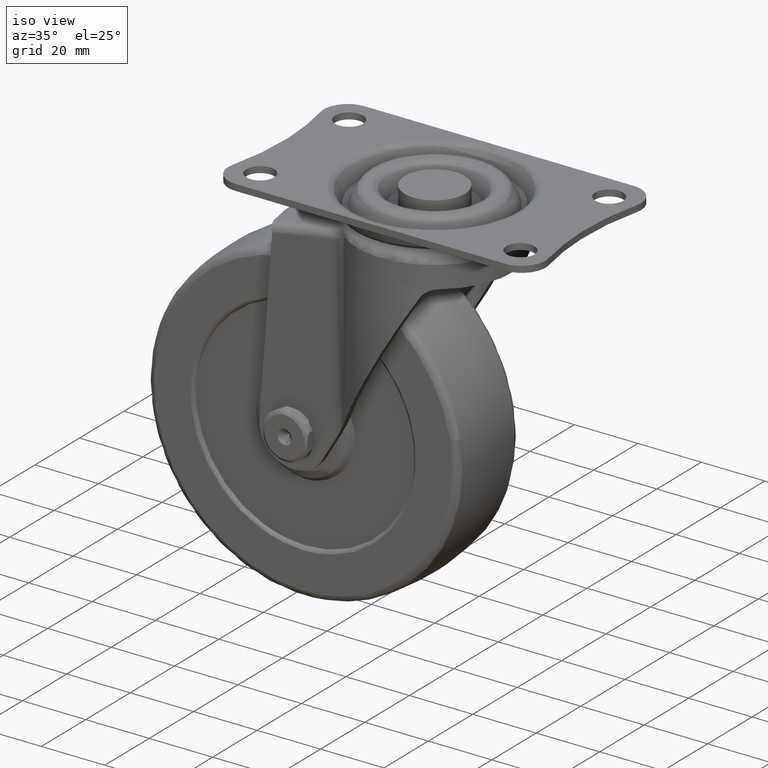
[diagram: clean part render]
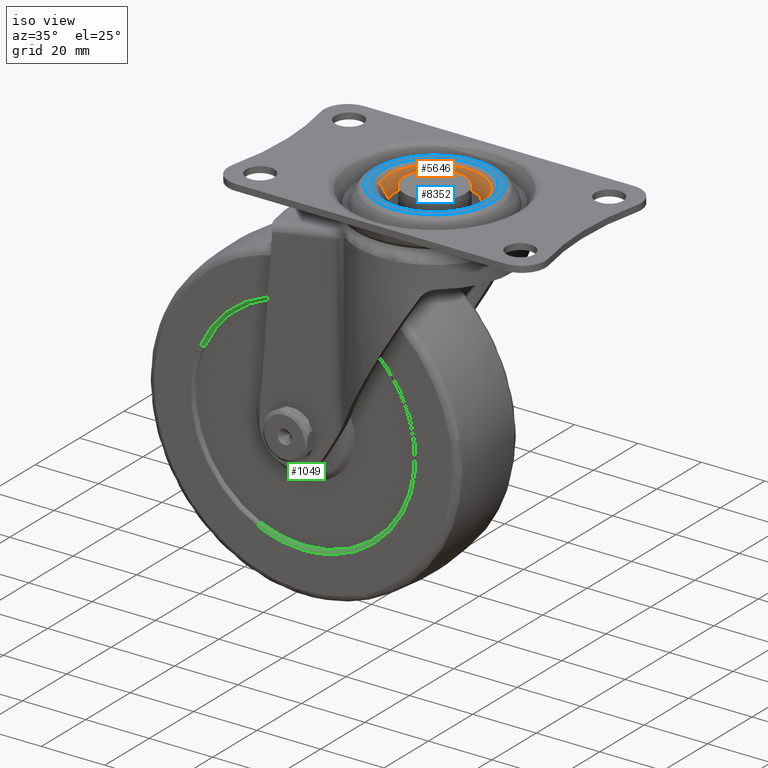
[diagram: same view with three faces highlighted in distinct colors, each labeled with its STEP entity id]
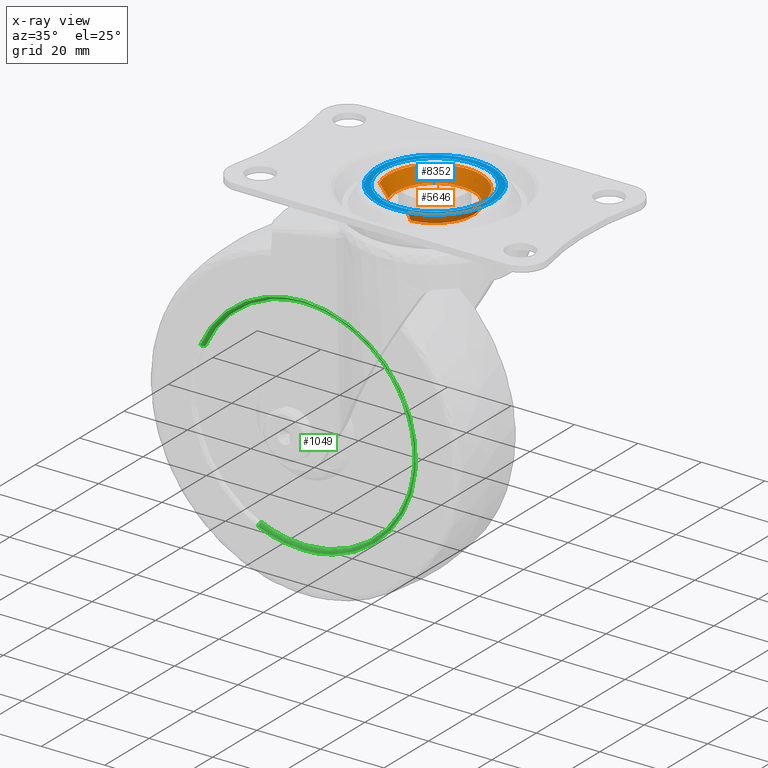
[diagram: x-ray of the same camera — body ghosted, the three highlighted faces saturated]
A machine part, iso view with three faces highlighted in distinct colors.
The next image is the same camera in x-ray (body ghosted, the three faces saturated) — at least one of them is partly hidden behind the body in this view.
Their STEP definitions:

[orange] entity #5646 — the highlighted face is a freeform B-spline surface patch.
#5445=CARTESIAN_POINT('',(0.961123922996726,-12.212237338238280,-3.200000999942240));
#5446=VERTEX_POINT('',#5445);
#5447=CARTESIAN_POINT('',(-11.390837720412531,-4.506801586166319,-3.200004922929527));
#5448=VERTEX_POINT('',#5447);
#5464=CARTESIAN_POINT('',(-13.645641065980440,-5.398920220118912,1.000000000005042));
#5465=VERTEX_POINT('',#5464);
#5466=CARTESIAN_POINT('',(-11.390837720412531,-4.506801586166319,-3.200004922929527));
#5467=CARTESIAN_POINT('',(-13.645641065980440,-5.398920220118912,1.000000000005042));
#5468=QUASI_UNIFORM_CURVE('',1,(#5466,#5467),.UNSPECIFIED.,.F.,.U.);
#5469=EDGE_CURVE('',#5448,#5465,#5468,.T.);
#5471=CARTESIAN_POINT('',(1.151377164130931,-14.629633975962040,1.000000000000579));
#5472=VERTEX_POINT('',#5471);
#5488=CARTESIAN_POINT('',(0.961123922996726,-12.212237338238280,-3.200000999942240));
#5489=CARTESIAN_POINT('',(1.151377164130931,-14.629633975962040,1.000000000000579));
#5490=QUASI_UNIFORM_CURVE('',1,(#5488,#5489),.UNSPECIFIED.,.F.,.U.);
#5491=EDGE_CURVE('',#5446,#5472,#5490,.T.);
#5496=CARTESIAN_POINT('',(0.956367591624491,-12.151802422223110,-3.305001025112003));
#5497=CARTESIAN_POINT('',(13.108170013847582,-11.195434830598616,-3.305001025112002));
#5498=CARTESIAN_POINT('',(12.151802422223090,0.956367591624477,-3.305001025112003));
#5499=CARTESIAN_POINT('',(11.195434830598602,13.108170013847568,-3.305001025112002));
#5500=CARTESIAN_POINT('',(-0.956367591624491,12.151802422223080,-3.305001025112003));
#5501=CARTESIAN_POINT('',(-13.108170013847582,11.195434830598588,-3.305001025112002));
#5502=CARTESIAN_POINT('',(-12.151802422223090,-0.956367591624505,-3.305001025112003));
#5503=CARTESIAN_POINT('',(-12.008135825992984,-2.781824777073583,-3.305001025112003));
#5504=CARTESIAN_POINT('',(-11.334469094097001,-4.484501246963442,-3.305001025112002));
#5505=CARTESIAN_POINT('',(1.156252403648143,-14.691579767447431,1.107625030218009));
#5506=CARTESIAN_POINT('',(15.847832171095549,-13.535327363799283,1.107625030218009));
#5507=CARTESIAN_POINT('',(14.691579767447410,1.156252403648129,1.107625030218009));
#5508=CARTESIAN_POINT('',(13.535327363799270,15.847832171095536,1.107625030218009));
#5509=CARTESIAN_POINT('',(-1.156252403648143,14.691579767447401,1.107625030218009));
#5510=CARTESIAN_POINT('',(-15.847832171095549,13.535327363799254,1.107625030218009));
#5511=CARTESIAN_POINT('',(-14.691579767447410,-1.156252403648157,1.107625030218009));
#5512=CARTESIAN_POINT('',(-14.517886253917908,-3.363237747899569,1.107625030218009));
#5513=CARTESIAN_POINT('',(-13.703420367752290,-5.421780695388202,1.107625030218009));
#5521=(BOUNDED_SURFACE()B_SPLINE_SURFACE(2,1,((#5496,#5505),(#5497,#5506),(#5498,#5507),(#5499,#5508),(#5500,#5509),(#5501,#5510),(#5502,#5511),(#5503,#5512),(#5504,#5513)),.UNSPECIFIED.,.F.,.F.,.U.)B_SPLINE_SURFACE_WITH_KNOTS((3,2,2,2,3),(2,2),(0.0,24.417076066176371,48.834152132352742,73.251228198529105,78.134643411764387),(0.0,5.095261681755877),.UNSPECIFIED.)GEOMETRIC_REPRESENTATION_ITEM()RATIONAL_B_SPLINE_SURFACE(((1.0,1.0),(0.707106781186548,0.707106781186548),(1.0,1.0),(0.707106781186548,0.707106781186548),(1.0,1.0),(0.707106781186548,0.707106781186548),(1.0,1.0),(0.941421356237310,0.941421356237310),(0.906274169979695,0.906274169979695)))REPRESENTATION_ITEM('')SURFACE());
#5522=CARTESIAN_POINT('',(-12.250000000000000,-1.421085E-014,-3.200001000000045));
#5523=VERTEX_POINT('',#5522);
#5524=CARTESIAN_POINT('',(-11.390837720412529,-4.506801586166319,-3.200004922929527));
#5525=CARTESIAN_POINT('',(-12.249998946972870,-2.335294354758209,-3.200002961464787));
#5526=CARTESIAN_POINT('',(-12.250000000000000,-1.421085E-014,-3.200001000000045));
#5534=(BOUNDED_CURVE()B_SPLINE_CURVE(2,(#5524,#5525,#5526),.UNSPECIFIED.,.F.,.U.)B_SPLINE_CURVE_WITH_KNOTS((3,3),(0.937532573830713,1.0),.UNSPECIFIED.)CURVE()GEOMETRIC_REPRESENTATION_ITEM()RATIONAL_B_SPLINE_CURVE((0.890203215506283,0.926814857913144,1.0))REPRESENTATION_ITEM(''));
#5535=EDGE_CURVE('',#5448,#5523,#5534,.T.);
#5536=ORIENTED_EDGE('',*,*,#5535,.T.);
#5537=CARTESIAN_POINT('',(12.250000000000000,-1.421085E-014,-3.200001000000045));
#5538=VERTEX_POINT('',#5537);
#5539=CARTESIAN_POINT('',(-12.250000000000000,-1.421085E-014,-3.200001000000045));
#5540=CARTESIAN_POINT('',(-12.249999999999996,12.249999999999984,-3.200001000000045));
#5541=CARTESIAN_POINT('',(0.0,12.249999999999989,-3.200001000000045));
#5542=CARTESIAN_POINT('',(12.249999999999996,12.249999999999984,-3.200001000000045));
#5543=CARTESIAN_POINT('',(12.250000000000000,-1.421085E-014,-3.200001000000045));
#5551=(BOUNDED_CURVE()B_SPLINE_CURVE(2,(#5539,#5540,#5541,#5542,#5543),.UNSPECIFIED.,.F.,.U.)B_SPLINE_CURVE_WITH_KNOTS((3,2,3),(0.0,0.250000000000000,0.500000000000000),.UNSPECIFIED.)CURVE()GEOMETRIC_REPRESENTATION_ITEM()RATIONAL_B_SPLINE_CURVE((1.0,0.707106781186547,1.0,0.707106781186547,1.0))REPRESENTATION_ITEM(''));
#5552=EDGE_CURVE('',#5523,#5538,#5551,.T.);
#5553=ORIENTED_EDGE('',*,*,#5552,.T.);
#5554=CARTESIAN_POINT('',(12.250000000000000,-1.421085E-014,-3.200001000000045));
#5555=CARTESIAN_POINT('',(12.249999999999998,-11.323783522202845,-3.200001000000046));
#5556=CARTESIAN_POINT('',(0.961123922996726,-12.212237338238289,-3.200000999942240));
#5564=(BOUNDED_CURVE()B_SPLINE_CURVE(2,(#5554,#5555,#5556),.UNSPECIFIED.,.F.,.U.)B_SPLINE_CURVE_WITH_KNOTS((3,3),(0.500000000000000,0.736331300623558),.UNSPECIFIED.)CURVE()GEOMETRIC_REPRESENTATION_ITEM()RATIONAL_B_SPLINE_CURVE((1.0,0.723120658615986,0.969723356152597))REPRESENTATION_ITEM(''));
#5565=EDGE_CURVE('',#5538,#5446,#5564,.T.);
#5566=ORIENTED_EDGE('',*,*,#5565,.T.);
#5567=ORIENTED_EDGE('',*,*,#5491,.T.);
#5568=CARTESIAN_POINT('',(14.674871707946719,-1.421085E-014,1.0));
#5569=VERTEX_POINT('',#5568);
#5570=CARTESIAN_POINT('',(14.674871707946719,-1.421085E-014,1.0));
#5571=CARTESIAN_POINT('',(14.674871707946718,-13.565311873123937,1.0));
#5572=CARTESIAN_POINT('',(1.151377164130931,-14.629633975962049,1.000000000000579));
#5580=(BOUNDED_CURVE()B_SPLINE_CURVE(2,(#5570,#5571,#5572),.UNSPECIFIED.,.F.,.U.)B_SPLINE_CURVE_WITH_KNOTS((3,3),(0.500000000000000,0.736331300632691),.UNSPECIFIED.)CURVE()GEOMETRIC_REPRESENTATION_ITEM()RATIONAL_B_SPLINE_CURVE((1.0,0.723120658605286,0.969723356171656))REPRESENTATION_ITEM(''));
#5581=EDGE_CURVE('',#5569,#5472,#5580,.T.);
#5582=ORIENTED_EDGE('',*,*,#5581,.F.);
#5583=CARTESIAN_POINT('',(7.230710525627229,12.769834964288400,1.000000004478253));
#5584=VERTEX_POINT('',#5583);
#5585=CARTESIAN_POINT('',(7.230710525627229,12.769834964288403,1.000000004478253));
#5586=CARTESIAN_POINT('',(14.674871707946716,8.554700249920035,1.0));
#5587=CARTESIAN_POINT('',(14.674871707946719,-1.421085E-014,1.0));
#5595=(BOUNDED_CURVE()B_SPLINE_CURVE(2,(#5585,#5586,#5587),.UNSPECIFIED.,.F.,.U.)B_SPLINE_CURVE_WITH_KNOTS((3,3),(0.333983638487781,0.500000000000000),.UNSPECIFIED.)CURVE()GEOMETRIC_REPRESENTATION_ITEM()RATIONAL_B_SPLINE_CURVE((0.869321279798486,0.805499734003954,1.0))REPRESENTATION_ITEM(''));
#5596=EDGE_CURVE('',#5584,#5569,#5595,.T.);
#5597=ORIENTED_EDGE('',*,*,#5596,.F.);
#5598=CARTESIAN_POINT('',(-12.769834964288419,7.230710525627215,1.000000004478253));
#5599=VERTEX_POINT('',#5598);
#5600=CARTESIAN_POINT('',(-12.769834964288414,7.230710525627215,1.000000004478253));
#5601=CARTESIAN_POINT('',(-8.554700249920050,14.674871707946703,1.0));
#5602=CARTESIAN_POINT('',(0.0,14.674871707946711,1.0));
#5603=CARTESIAN_POINT('',(3.866310198917092,14.674871707946707,1.0));
#5604=CARTESIAN_POINT('',(7.230710525627230,12.769834964288407,1.000000004478253));
#5612=(BOUNDED_CURVE()B_SPLINE_CURVE(2,(#5600,#5601,#5602,#5603,#5604),.UNSPECIFIED.,.F.,.U.)B_SPLINE_CURVE_WITH_KNOTS((3,2,3),(0.083983638487781,0.250000000000000,0.333983638487782),.UNSPECIFIED.)CURVE()GEOMETRIC_REPRESENTATION_ITEM()RATIONAL_B_SPLINE_CURVE((0.869321279798486,0.805499734003954,1.0,0.901607047182593,0.869321279798486))REPRESENTATION_ITEM(''));
#5613=EDGE_CURVE('',#5599,#5584,#5612,.T.);
#5614=ORIENTED_EDGE('',*,*,#5613,.F.);
#5615=CARTESIAN_POINT('',(-14.674871707946719,-1.421085E-014,1.0));
#5616=VERTEX_POINT('',#5615);
#5617=CARTESIAN_POINT('',(-14.674871707946719,-1.421085E-014,1.0));
#5618=CARTESIAN_POINT('',(-14.674871707946716,3.866310198917070,1.0));
#5619=CARTESIAN_POINT('',(-12.769834964288414,7.230710525627215,1.000000004478253));
#5627=(BOUNDED_CURVE()B_SPLINE_CURVE(2,(#5617,#5618,#5619),.UNSPECIFIED.,.F.,.U.)B_SPLINE_CURVE_WITH_KNOTS((3,3),(0.0,0.083983638487781),.UNSPECIFIED.)CURVE()GEOMETRIC_REPRESENTATION_ITEM()RATIONAL_B_SPLINE_CURVE((1.0,0.901607047182593,0.869321279798486))REPRESENTATION_ITEM(''));
#5628=EDGE_CURVE('',#5616,#5599,#5627,.T.);
#5629=ORIENTED_EDGE('',*,*,#5628,.F.);
#5630=CARTESIAN_POINT('',(-13.645641065980438,-5.398920220118911,1.000000000005042));
#5631=CARTESIAN_POINT('',(-14.674871707946719,-2.797564515326600,1.0));
#5632=CARTESIAN_POINT('',(-14.674871707946719,-1.421085E-014,1.0));
#5640=(BOUNDED_CURVE()B_SPLINE_CURVE(2,(#5630,#5631,#5632),.UNSPECIFIED.,.F.,.U.)B_SPLINE_CURVE_WITH_KNOTS((3,3),(0.937532549938708,1.0),.UNSPECIFIED.)CURVE()GEOMETRIC_REPRESENTATION_ITEM()RATIONAL_B_SPLINE_CURVE((0.890203187500475,0.926814829921918,1.0))REPRESENTATION_ITEM(''));
#5641=EDGE_CURVE('',#5465,#5616,#5640,.T.);
#5642=ORIENTED_EDGE('',*,*,#5641,.F.);
#5643=ORIENTED_EDGE('',*,*,#5469,.F.);
#5644=EDGE_LOOP('',(#5536,#5553,#5566,#5567,#5582,#5597,#5614,#5629,#5642,#5643));
#5645=FACE_OUTER_BOUND('',#5644,.T.);
#5646=ADVANCED_FACE('',(#5645),#5521,.F.);

[blue] entity #8352 — the highlighted face is a freeform B-spline surface patch.
#6671=CARTESIAN_POINT('',(-14.277037436021990,8.084139313534365,2.0));
#6672=VERTEX_POINT('',#6671);
#6686=CARTESIAN_POINT('',(-16.406922515515600,-1.421085E-014,2.0));
#6687=VERTEX_POINT('',#6686);
#6688=CARTESIAN_POINT('',(-16.406922515515600,-1.421085E-014,2.0));
#6689=CARTESIAN_POINT('',(-16.406922515515603,4.322644389379765,2.000000000000000));
#6690=CARTESIAN_POINT('',(-14.277037436021983,8.084139313534365,2.0));
#6698=(BOUNDED_CURVE()B_SPLINE_CURVE(2,(#6688,#6689,#6690),.UNSPECIFIED.,.F.,.U.)B_SPLINE_CURVE_WITH_KNOTS((3,3),(0.0,0.083983638486162),.UNSPECIFIED.)CURVE()GEOMETRIC_REPRESENTATION_ITEM()RATIONAL_B_SPLINE_CURVE((1.0,0.901607047184490,0.869321279799731))REPRESENTATION_ITEM(''));
#6699=EDGE_CURVE('',#6687,#6672,#6698,.T.);
#6701=CARTESIAN_POINT('',(16.406922515515600,-1.421085E-014,2.0));
#6702=VERTEX_POINT('',#6701);
#6703=CARTESIAN_POINT('',(16.406922515515600,-1.421085E-014,2.0));
#6704=CARTESIAN_POINT('',(16.406922515515600,-16.406922515515614,2.000000000000000));
#6705=CARTESIAN_POINT('',(0.0,-16.406922515515610,2.0));
#6706=CARTESIAN_POINT('',(-16.406922515515600,-16.406922515515614,2.000000000000000));
#6707=CARTESIAN_POINT('',(-16.406922515515600,-1.421085E-014,2.0));
#6715=(BOUNDED_CURVE()B_SPLINE_CURVE(2,(#6703,#6704,#6705,#6706,#6707),.UNSPECIFIED.,.F.,.U.)B_SPLINE_CURVE_WITH_KNOTS((3,2,3),(0.500000000000000,0.750000000000000,1.0),.UNSPECIFIED.)CURVE()GEOMETRIC_REPRESENTATION_ITEM()RATIONAL_B_SPLINE_CURVE((1.0,0.707106781186548,1.0,0.707106781186548,1.0))REPRESENTATION_ITEM(''));
#6716=EDGE_CURVE('',#6702,#6687,#6715,.T.);
#6718=CARTESIAN_POINT('',(8.084139313534376,14.277037436021971,2.0));
#6719=VERTEX_POINT('',#6718);
#6720=CARTESIAN_POINT('',(8.084139313534376,14.277037436021972,2.0));
#6721=CARTESIAN_POINT('',(16.406922515515600,9.564397354805751,2.000000000000000));
#6722=CARTESIAN_POINT('',(16.406922515515600,-1.421085E-014,2.0));
#6730=(BOUNDED_CURVE()B_SPLINE_CURVE(2,(#6720,#6721,#6722),.UNSPECIFIED.,.F.,.U.)B_SPLINE_CURVE_WITH_KNOTS((3,3),(0.333983638486162,0.500000000000000),.UNSPECIFIED.)CURVE()GEOMETRIC_REPRESENTATION_ITEM()RATIONAL_B_SPLINE_CURVE((0.869321279799731,0.805499734002057,1.0))REPRESENTATION_ITEM(''));
#6731=EDGE_CURVE('',#6719,#6702,#6730,.T.);
#6768=CARTESIAN_POINT('',(-14.277037436021992,8.084139313534365,2.000000000000000));
#6769=CARTESIAN_POINT('',(-9.564397354805763,16.406922515515586,2.000000000000000));
#6770=CARTESIAN_POINT('',(0.0,16.406922515515589,2.0));
#6771=CARTESIAN_POINT('',(4.322644389379791,16.406922515515582,2.0));
#6772=CARTESIAN_POINT('',(8.084139313534376,14.277037436021976,2.000000000000000));
#6780=(BOUNDED_CURVE()B_SPLINE_CURVE(2,(#6768,#6769,#6770,#6771,#6772),.UNSPECIFIED.,.F.,.U.)B_SPLINE_CURVE_WITH_KNOTS((3,2,3),(0.083983638486162,0.250000000000000,0.333983638486163),.UNSPECIFIED.)CURVE()GEOMETRIC_REPRESENTATION_ITEM()RATIONAL_B_SPLINE_CURVE((0.869321279799731,0.805499734002057,1.0,0.901607047184490,0.869321279799731))REPRESENTATION_ITEM(''));
#6781=EDGE_CURVE('',#6672,#6719,#6780,.T.);
#6816=CARTESIAN_POINT('',(8.316551361323885,-16.349417890404499,2.0));
#6817=VERTEX_POINT('',#6816);
#6818=CARTESIAN_POINT('',(-18.343077484484400,-1.421085E-014,2.0));
#6819=VERTEX_POINT('',#6818);
#6820=CARTESIAN_POINT('',(8.316551361323885,-16.349417890404492,1.999999999999999));
#6821=CARTESIAN_POINT('',(4.397237625745127,-18.343077484484418,2.000000000000000));
#6822=CARTESIAN_POINT('',(0.0,-18.343077484484411,2.0));
#6823=CARTESIAN_POINT('',(-18.343077484484404,-18.343077484484418,2.000000000000000));
#6824=CARTESIAN_POINT('',(-18.343077484484400,-1.421085E-014,2.0));
#6832=(BOUNDED_CURVE()B_SPLINE_CURVE(2,(#6820,#6821,#6822,#6823,#6824),.UNSPECIFIED.,.F.,.U.)B_SPLINE_CURVE_WITH_KNOTS((3,2,3),(0.672901120401889,0.750000000000000,1.0),.UNSPECIFIED.)CURVE()GEOMETRIC_REPRESENTATION_ITEM()RATIONAL_B_SPLINE_CURVE((0.875058944772247,0.909673043950394,1.0,0.707106781186548,1.0))REPRESENTATION_ITEM(''));
#6833=EDGE_CURVE('',#6817,#6819,#6832,.T.);
#6835=CARTESIAN_POINT('',(15.847014192408439,9.237999416908927,2.0));
#6836=VERTEX_POINT('',#6835);
#6837=CARTESIAN_POINT('',(-18.343077484484400,-1.421085E-014,2.0));
#6838=CARTESIAN_POINT('',(-18.343077484484404,18.343077484484386,2.000000000000000));
#6839=CARTESIAN_POINT('',(0.0,18.343077484484390,2.0));
#6840=CARTESIAN_POINT('',(10.539218977415647,18.343077484484393,2.000000000000000));
#6841=CARTESIAN_POINT('',(15.847014192408437,9.237999416908926,1.999999999999999));
#6849=(BOUNDED_CURVE()B_SPLINE_CURVE(2,(#6837,#6838,#6839,#6840,#6841),.UNSPECIFIED.,.F.,.U.)B_SPLINE_CURVE_WITH_KNOTS((3,2,3),(0.0,0.250000000000000,0.414086837565918),.UNSPECIFIED.)CURVE()GEOMETRIC_REPRESENTATION_ITEM()RATIONAL_B_SPLINE_CURVE((1.0,0.707106781186548,1.0,0.807760311921592,0.867872643614740))REPRESENTATION_ITEM(''));
#6850=EDGE_CURVE('',#6819,#6836,#6849,.T.);
#6908=CARTESIAN_POINT('',(18.343077484484400,-1.421085E-014,2.0));
#6909=VERTEX_POINT('',#6908);
#6910=CARTESIAN_POINT('',(18.343077484484400,-1.421085E-014,2.0));
#6911=CARTESIAN_POINT('',(18.343077484484407,-11.249167827054080,2.000000000000000));
#6912=CARTESIAN_POINT('',(8.316551361323885,-16.349417890404492,1.999999999999999));
#6920=(BOUNDED_CURVE()B_SPLINE_CURVE(2,(#6910,#6911,#6912),.UNSPECIFIED.,.F.,.U.)B_SPLINE_CURVE_WITH_KNOTS((3,3),(0.500000000000000,0.672901120401889),.UNSPECIFIED.)CURVE()GEOMETRIC_REPRESENTATION_ITEM()RATIONAL_B_SPLINE_CURVE((1.0,0.797433737236153,0.875058944772247))REPRESENTATION_ITEM(''));
#6921=EDGE_CURVE('',#6909,#6817,#6920,.T.);
#6927=CARTESIAN_POINT('',(15.847014192408437,9.237999416908926,1.999999999999999));
#6928=CARTESIAN_POINT('',(18.343077484484400,4.956211894782876,2.000000000000000));
#6929=CARTESIAN_POINT('',(18.343077484484400,-1.421085E-014,2.0));
#6937=(BOUNDED_CURVE()B_SPLINE_CURVE(2,(#6927,#6928,#6929),.UNSPECIFIED.,.F.,.U.)B_SPLINE_CURVE_WITH_KNOTS((3,3),(0.414086837565918,0.500000000000000),.UNSPECIFIED.)CURVE()GEOMETRIC_REPRESENTATION_ITEM()RATIONAL_B_SPLINE_CURVE((0.867872643614740,0.899346469264955,1.0))REPRESENTATION_ITEM(''));
#6938=EDGE_CURVE('',#6836,#6909,#6937,.T.);
#8335=CARTESIAN_POINT('',(-20.175550034244040,-20.175230720611950,2.0));
#8336=CARTESIAN_POINT('',(20.175549050244690,-20.175230720611950,2.0));
#8337=CARTESIAN_POINT('',(-20.175550034244040,20.175476221787459,2.0));
#8338=CARTESIAN_POINT('',(20.175549050244690,20.175476221787459,2.0));
#8339=B_SPLINE_SURFACE_WITH_KNOTS('',1,1,((#8335,#8337),(#8336,#8338)),.UNSPECIFIED.,.F.,.F.,.U.,(2,2),(2,2),(0.0,40.351099084488723),(0.0,40.350706942399412),.UNSPECIFIED.);
#8340=ORIENTED_EDGE('',*,*,#6833,.F.);
#8341=ORIENTED_EDGE('',*,*,#6921,.F.);
#8342=ORIENTED_EDGE('',*,*,#6938,.F.);
#8343=ORIENTED_EDGE('',*,*,#6850,.F.);
#8344=EDGE_LOOP('',(#8340,#8341,#8342,#8343));
#8345=FACE_OUTER_BOUND('',#8344,.T.);
#8346=ORIENTED_EDGE('',*,*,#6716,.T.);
#8347=ORIENTED_EDGE('',*,*,#6699,.T.);
#8348=ORIENTED_EDGE('',*,*,#6781,.T.);
#8349=ORIENTED_EDGE('',*,*,#6731,.T.);
#8350=EDGE_LOOP('',(#8346,#8347,#8348,#8349));
#8351=FACE_BOUND('',#8350,.T.);
#8352=ADVANCED_FACE('',(#8345,#8351),#8339,.T.);

[green] entity #1049 — the highlighted face is a freeform B-spline surface patch.
#876=CARTESIAN_POINT('',(-63.578541064481470,-12.422952719946887,-56.098530304429872));
#877=CARTESIAN_POINT('',(-49.677071368911328,-12.422952719946878,-24.519989239948387));
#878=CARTESIAN_POINT('',(-18.098530304429872,-12.422952719946887,-38.421458935518537));
#879=CARTESIAN_POINT('',(13.480010760051599,-12.422952719946878,-52.322928631088658));
#880=CARTESIAN_POINT('',(-0.421458935518530,-12.422952719946887,-83.901469695570128));
#881=CARTESIAN_POINT('',(-14.322928631088660,-12.422952719946878,-115.480010760051610));
#882=CARTESIAN_POINT('',(-45.901469695570135,-12.422952719946887,-101.578541064481470));
#883=CARTESIAN_POINT('',(-63.568216772924870,-12.568926384586241,-56.103075252402896));
#884=CARTESIAN_POINT('',(-49.671292025327759,-12.568926384586234,-24.534858479478018));
#885=CARTESIAN_POINT('',(-18.103075252402896,-12.568926384586241,-38.431783227075130));
#886=CARTESIAN_POINT('',(13.465141520521973,-12.568926384586234,-52.328707974672220));
#887=CARTESIAN_POINT('',(-0.431783227075128,-12.568926384586241,-83.896924747597112));
#888=CARTESIAN_POINT('',(-14.328707974672229,-12.568926384586234,-115.465141520521980));
#889=CARTESIAN_POINT('',(-45.896924747597090,-12.568926384586241,-101.568216772924860));
#890=CARTESIAN_POINT('',(-63.596625604662961,-12.712007109922061,-56.090569148568420));
#891=CARTESIAN_POINT('',(-49.687194753231381,-12.712007109922057,-24.493943543905463));
#892=CARTESIAN_POINT('',(-18.090569148568420,-12.712007109922061,-38.403374395337039));
#893=CARTESIAN_POINT('',(13.506056456094541,-12.712007109922057,-52.312805246768612));
#894=CARTESIAN_POINT('',(-0.403374395337036,-12.712007109922061,-83.909430851431580));
#895=CARTESIAN_POINT('',(-14.312805246768608,-12.712007109922057,-115.506056456094540));
#896=CARTESIAN_POINT('',(-45.909430851431573,-12.712007109922061,-101.596625604663000));
#897=CARTESIAN_POINT('',(-63.765473482908590,-13.562407334525579,-56.016239126234581));
#898=CARTESIAN_POINT('',(-49.781712609143185,-13.562407334525576,-24.250765643326012));
#899=CARTESIAN_POINT('',(-18.016239126234591,-13.562407334525579,-38.234526517091396));
#900=CARTESIAN_POINT('',(13.749234356673995,-13.562407334525576,-52.218287390856830));
#901=CARTESIAN_POINT('',(-0.234526517091411,-13.562407334525579,-83.983760873765405));
#902=CARTESIAN_POINT('',(-14.218287390856824,-13.562407334525576,-115.749234356673990));
#903=CARTESIAN_POINT('',(-45.983760873765405,-13.562407334525579,-101.765473482908590));
#904=CARTESIAN_POINT('',(-64.559658919390273,-13.497187295926436,-55.666623710013518));
#905=CARTESIAN_POINT('',(-50.226282629403769,-13.497187295926425,-23.106964790623241));
#906=CARTESIAN_POINT('',(-17.666623710013504,-13.497187295926436,-37.440341080609741));
#907=CARTESIAN_POINT('',(14.893035209376761,-13.497187295926425,-51.773717370596223));
#908=CARTESIAN_POINT('',(0.559658919390264,-13.497187295926436,-84.333376289986504));
#909=CARTESIAN_POINT('',(-13.773717370596222,-13.497187295926425,-116.893035209376750));
#910=CARTESIAN_POINT('',(-46.333376289986489,-13.497187295926436,-102.559658919390270));
#918=(BOUNDED_SURFACE()B_SPLINE_SURFACE(2,2,((#876,#883,#890,#897,#904),(#877,#884,#891,#898,#905),(#878,#885,#892,#899,#906),(#879,#886,#893,#900,#907),(#880,#887,#894,#901,#908),(#881,#888,#895,#902,#909),(#882,#889,#896,#903,#910)),.UNSPECIFIED.,.F.,.F.,.U.)B_SPLINE_SURFACE_WITH_KNOTS((3,2,2,3),(3,2,3),(0.0,58.942507020451004,117.885014040902010,176.827521061353000),(0.0,0.322089478584902,1.818572501326109),.UNSPECIFIED.)GEOMETRIC_REPRESENTATION_ITEM()RATIONAL_B_SPLINE_SURFACE(((0.909306227083962,0.943516710643283,1.0,0.737568939034358,0.955938966502497),(0.642976599346225,0.667167064258691,0.707106781186548,0.521539998383762,0.675950925614376),(0.909306227083962,0.943516710643283,1.0,0.737568939034358,0.955938966502497),(0.642976599346225,0.667167064258691,0.707106781186548,0.521539998383762,0.675950925614376),(0.909306227083962,0.943516710643283,1.0,0.737568939034358,0.955938966502497),(0.642976599346225,0.667167064258691,0.707106781186548,0.521539998383762,0.675950925614376),(0.909306227083962,0.943516710643283,1.0,0.737568939034358,0.955938966502497)))REPRESENTATION_ITEM('')SURFACE());
#919=CARTESIAN_POINT('',(-63.575820455415247,-12.499999998985521,-56.099727967864112));
#920=VERTEX_POINT('',#919);
#921=CARTESIAN_POINT('',(-32.0,-12.500000000000000,-35.500000000000007));
#922=VERTEX_POINT('',#921);
#923=CARTESIAN_POINT('',(-63.575820455415254,-12.499999998985519,-56.099727967864112));
#924=CARTESIAN_POINT('',(-54.507431466252541,-12.499999999999998,-35.500000000000007));
#925=CARTESIAN_POINT('',(-32.0,-12.500000000000000,-35.500000000000007));
#933=(BOUNDED_CURVE()B_SPLINE_CURVE(2,(#923,#924,#925),.UNSPECIFIED.,.F.,.U.)B_SPLINE_CURVE_WITH_KNOTS((3,3),(0.818414990138691,1.0),.UNSPECIFIED.)CURVE()GEOMETRIC_REPRESENTATION_ITEM()RATIONAL_B_SPLINE_CURVE((0.883563120517996,0.787259927893795,1.0))REPRESENTATION_ITEM(''));
#934=EDGE_CURVE('',#920,#922,#933,.T.);
#935=ORIENTED_EDGE('',*,*,#934,.T.);
#936=CARTESIAN_POINT('',(-32.0,-12.500000000000000,-104.500000000000000));
#937=VERTEX_POINT('',#936);
#938=CARTESIAN_POINT('',(-32.0,-12.500000000000000,-35.500000000000007));
#939=CARTESIAN_POINT('',(2.500000000000001,-12.500000000000000,-35.500000000000000));
#940=CARTESIAN_POINT('',(2.500000000000002,-12.500000000000000,-70.0));
#941=CARTESIAN_POINT('',(2.500000000000001,-12.500000000000000,-104.500000000000010));
#942=CARTESIAN_POINT('',(-32.0,-12.500000000000000,-104.500000000000000));
#950=(BOUNDED_CURVE()B_SPLINE_CURVE(2,(#938,#939,#940,#941,#942),.UNSPECIFIED.,.F.,.U.)B_SPLINE_CURVE_WITH_KNOTS((3,2,3),(0.0,0.250000000000000,0.500000000000000),.UNSPECIFIED.)CURVE()GEOMETRIC_REPRESENTATION_ITEM()RATIONAL_B_SPLINE_CURVE((1.0,0.707106781186548,1.0,0.707106781186548,1.0))REPRESENTATION_ITEM(''));
#951=EDGE_CURVE('',#922,#937,#950,.T.);
#952=ORIENTED_EDGE('',*,*,#951,.T.);
#953=CARTESIAN_POINT('',(-45.900272032135902,-12.499999998985521,-101.575820455415300));
#954=VERTEX_POINT('',#953);
#955=CARTESIAN_POINT('',(-32.0,-12.500000000000000,-104.500000000000000));
#956=CARTESIAN_POINT('',(-39.257713665966882,-12.499999999999998,-104.500000000000030));
#957=CARTESIAN_POINT('',(-45.900272032135902,-12.499999998985516,-101.575820455415250));
#965=(BOUNDED_CURVE()B_SPLINE_CURVE(2,(#955,#956,#957),.UNSPECIFIED.,.F.,.U.)B_SPLINE_CURVE_WITH_KNOTS((3,3),(0.500000000000000,0.568414990138692),.UNSPECIFIED.)CURVE()GEOMETRIC_REPRESENTATION_ITEM()RATIONAL_B_SPLINE_CURVE((1.0,0.919846853292751,0.883563120517995))REPRESENTATION_ITEM(''));
#966=EDGE_CURVE('',#937,#954,#965,.T.);
#967=ORIENTED_EDGE('',*,*,#966,.T.);
#968=CARTESIAN_POINT('',(-46.303178463571633,-13.500000000000000,-102.491061617942710));
#969=VERTEX_POINT('',#968);
#970=CARTESIAN_POINT('',(-45.900272032135909,-12.499999998985521,-101.575820455415270));
#971=CARTESIAN_POINT('',(-45.900272032033705,-12.607222235271067,-101.575820455222540));
#972=CARTESIAN_POINT('',(-45.909430851431580,-12.712007109922061,-101.596625604663000));
#973=CARTESIAN_POINT('',(-45.978306101119756,-13.499999982322837,-101.753082436079690));
#974=CARTESIAN_POINT('',(-46.303178463571626,-13.499999999999998,-102.491061617942650));
#982=(BOUNDED_CURVE()B_SPLINE_CURVE(2,(#970,#971,#972,#973,#974),.UNSPECIFIED.,.F.,.U.)B_SPLINE_CURVE_WITH_KNOTS((3,2,3),(-2.293216332251721,-2.0,-0.269009527128306),.UNSPECIFIED.)CURVE()GEOMETRIC_REPRESENTATION_ITEM()RATIONAL_B_SPLINE_CURVE((0.928314442728381,0.957999623135490,1.0,0.752052514772355,0.933299764246259))REPRESENTATION_ITEM(''));
#983=EDGE_CURVE('',#954,#969,#982,.T.);
#984=ORIENTED_EDGE('',*,*,#983,.T.);
#985=CARTESIAN_POINT('',(-32.0,-13.500000000000000,-105.500000000000000));
#986=VERTEX_POINT('',#985);
#987=CARTESIAN_POINT('',(-32.0,-13.500000000000000,-105.500000000000000));
#988=CARTESIAN_POINT('',(-39.468082178181469,-13.499999999999998,-105.500000000000010));
#989=CARTESIAN_POINT('',(-46.303178463571626,-13.499999999999998,-102.491061617942650));
#997=(BOUNDED_CURVE()B_SPLINE_CURVE(2,(#987,#988,#989),.UNSPECIFIED.,.F.,.U.)B_SPLINE_CURVE_WITH_KNOTS((3,3),(0.500000000000000,0.568414990140020),.UNSPECIFIED.)CURVE()GEOMETRIC_REPRESENTATION_ITEM()RATIONAL_B_SPLINE_CURVE((1.0,0.919846853291196,0.883563120516587))REPRESENTATION_ITEM(''));
#998=EDGE_CURVE('',#986,#969,#997,.T.);
#999=ORIENTED_EDGE('',*,*,#998,.F.);
#1000=CARTESIAN_POINT('',(-32.0,-13.500000000000000,-34.500000000000007));
#1001=VERTEX_POINT('',#1000);
#1002=CARTESIAN_POINT('',(-32.0,-13.500000000000000,-34.500000000000007));
#1003=CARTESIAN_POINT('',(3.499999999999995,-13.500000000000000,-34.500000000000007));
#1004=CARTESIAN_POINT('',(3.499999999999996,-13.500000000000000,-70.0));
#1005=CARTESIAN_POINT('',(3.499999999999995,-13.500000000000000,-105.500000000000010));
#1006=CARTESIAN_POINT('',(-32.0,-13.500000000000000,-105.500000000000000));
#1014=(BOUNDED_CURVE()B_SPLINE_CURVE(2,(#1002,#1003,#1004,#1005,#1006),.UNSPECIFIED.,.F.,.U.)B_SPLINE_CURVE_WITH_KNOTS((3,2,3),(0.0,0.250000000000000,0.500000000000000),.UNSPECIFIED.)CURVE()GEOMETRIC_REPRESENTATION_ITEM()RATIONAL_B_SPLINE_CURVE((1.0,0.707106781186548,1.0,0.707106781186548,1.0))REPRESENTATION_ITEM(''));
#1015=EDGE_CURVE('',#1001,#986,#1014,.T.);
#1016=ORIENTED_EDGE('',*,*,#1015,.F.);
#1017=CARTESIAN_POINT('',(-64.491061617942648,-13.500000000000000,-55.696821536428388));
#1018=VERTEX_POINT('',#1017);
#1019=CARTESIAN_POINT('',(-64.491061617942648,-13.500000000000002,-55.696821536428395));
#1020=CARTESIAN_POINT('',(-55.159820783899768,-13.499999999999995,-34.500000000000007));
#1021=CARTESIAN_POINT('',(-32.0,-13.500000000000000,-34.500000000000007));
#1029=(BOUNDED_CURVE()B_SPLINE_CURVE(2,(#1019,#1020,#1021),.UNSPECIFIED.,.F.,.U.)B_SPLINE_CURVE_WITH_KNOTS((3,3),(0.818414990140020,1.0),.UNSPECIFIED.)CURVE()GEOMETRIC_REPRESENTATION_ITEM()RATIONAL_B_SPLINE_CURVE((0.883563120516587,0.787259927895351,1.0))REPRESENTATION_ITEM(''));
#1030=EDGE_CURVE('',#1018,#1001,#1029,.T.);
#1031=ORIENTED_EDGE('',*,*,#1030,.F.);
#1032=CARTESIAN_POINT('',(-63.575820455415254,-12.499999998985523,-56.099727967864112));
#1033=CARTESIAN_POINT('',(-63.575820455222541,-12.607222235271069,-56.099727967966302));
#1034=CARTESIAN_POINT('',(-63.596625604662961,-12.712007109922061,-56.090569148568420));
#1035=CARTESIAN_POINT('',(-63.753082436079701,-13.499999982322821,-56.021693898880230));
#1036=CARTESIAN_POINT('',(-64.491061617942648,-13.500000000000000,-55.696821536428381));
#1044=(BOUNDED_CURVE()B_SPLINE_CURVE(2,(#1032,#1033,#1034,#1035,#1036),.UNSPECIFIED.,.F.,.U.)B_SPLINE_CURVE_WITH_KNOTS((3,2,3),(-2.293216332251722,-2.0,-0.269009527128332),.UNSPECIFIED.)CURVE()GEOMETRIC_REPRESENTATION_ITEM()RATIONAL_B_SPLINE_CURVE((0.928314442728381,0.957999623135490,1.0,0.752052514772359,0.933299764246253))REPRESENTATION_ITEM(''));
#1045=EDGE_CURVE('',#920,#1018,#1044,.T.);
#1046=ORIENTED_EDGE('',*,*,#1045,.F.);
#1047=EDGE_LOOP('',(#935,#952,#967,#984,#999,#1016,#1031,#1046));
#1048=FACE_OUTER_BOUND('',#1047,.T.);
#1049=ADVANCED_FACE('',(#1048),#918,.T.);